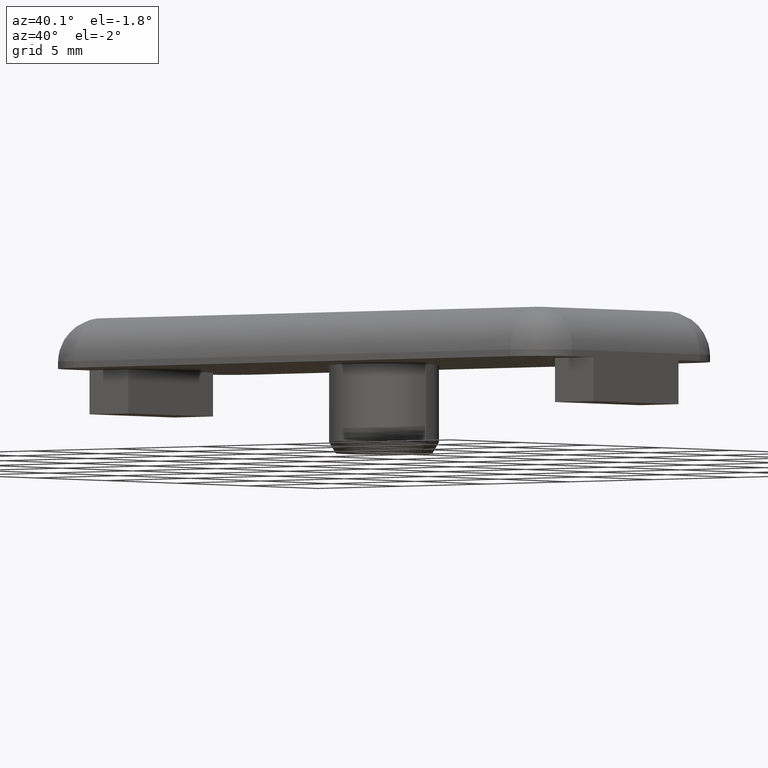
[diagram: clean part render]
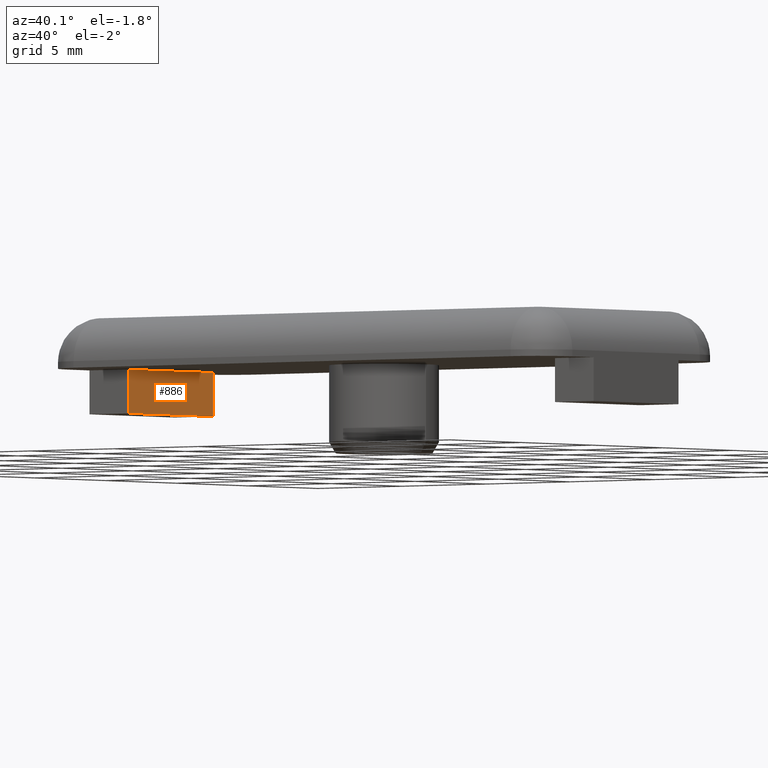
[diagram: same view with one face highlighted and labeled with its STEP entity id]
A machine part, auxiliary view. The second image highlights one B-rep face of the part: STEP entity #886.
In plain terms, the highlighted planar face has unit normal (1, 0, 0).
Its self-contained STEP definition (entity closure, byte-faithful):
#132=CARTESIAN_POINT('',(-12.699999999999930,-3.0,0.0));
#133=VERTEX_POINT('',#132);
#140=CARTESIAN_POINT('',(-12.699999999999930,3.0,0.0));
#141=VERTEX_POINT('',#140);
#142=CARTESIAN_POINT('',(-12.699999999999930,3.0,0.0));
#143=DIRECTION('',(0.0,-1.0,0.0));
#144=VECTOR('',#143,6.0);
#145=LINE('',#142,#144);
#146=EDGE_CURVE('',#141,#133,#145,.T.);
#846=CARTESIAN_POINT('',(-12.699999999999930,3.0,-2.0));
#847=VERTEX_POINT('',#846);
#848=CARTESIAN_POINT('',(-12.699999999999930,3.0,0.0));
#849=DIRECTION('',(0.0,0.0,-1.0));
#850=VECTOR('',#849,2.0);
#851=LINE('',#848,#850);
#852=EDGE_CURVE('',#141,#847,#851,.T.);
#863=CARTESIAN_POINT('',(-12.699999999999930,3.0,0.0));
#864=DIRECTION('',(1.0,0.0,0.0));
#865=DIRECTION('',(0.0,-1.0,0.0));
#866=AXIS2_PLACEMENT_3D('',#863,#864,#865);
#867=PLANE('',#866);
#868=ORIENTED_EDGE('',*,*,#852,.F.);
#869=ORIENTED_EDGE('',*,*,#146,.T.);
#870=CARTESIAN_POINT('',(-12.699999999999930,-3.0,-2.0));
#871=VERTEX_POINT('',#870);
#872=CARTESIAN_POINT('',(-12.699999999999930,-3.0,0.0));
#873=DIRECTION('',(0.0,0.0,-1.0));
#874=VECTOR('',#873,2.0);
#875=LINE('',#872,#874);
#876=EDGE_CURVE('',#133,#871,#875,.T.);
#877=ORIENTED_EDGE('',*,*,#876,.T.);
#878=CARTESIAN_POINT('',(-12.699999999999930,3.0,-2.0));
#879=DIRECTION('',(0.0,-1.0,0.0));
#880=VECTOR('',#879,6.0);
#881=LINE('',#878,#880);
#882=EDGE_CURVE('',#847,#871,#881,.T.);
#883=ORIENTED_EDGE('',*,*,#882,.F.);
#884=EDGE_LOOP('',(#868,#869,#877,#883));
#885=FACE_OUTER_BOUND('',#884,.T.);
#886=ADVANCED_FACE('',(#885),#867,.T.);